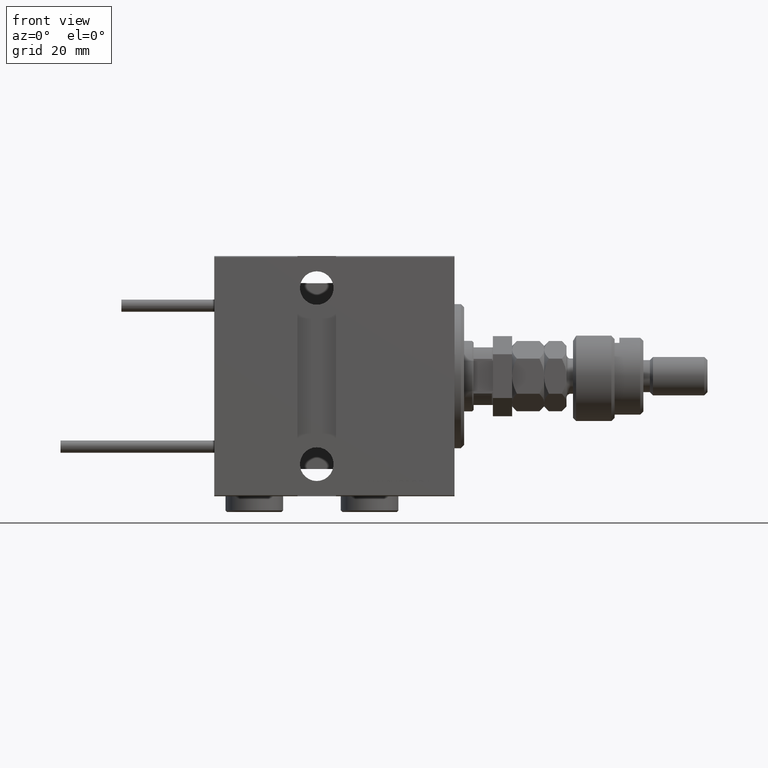
[diagram: clean part render]
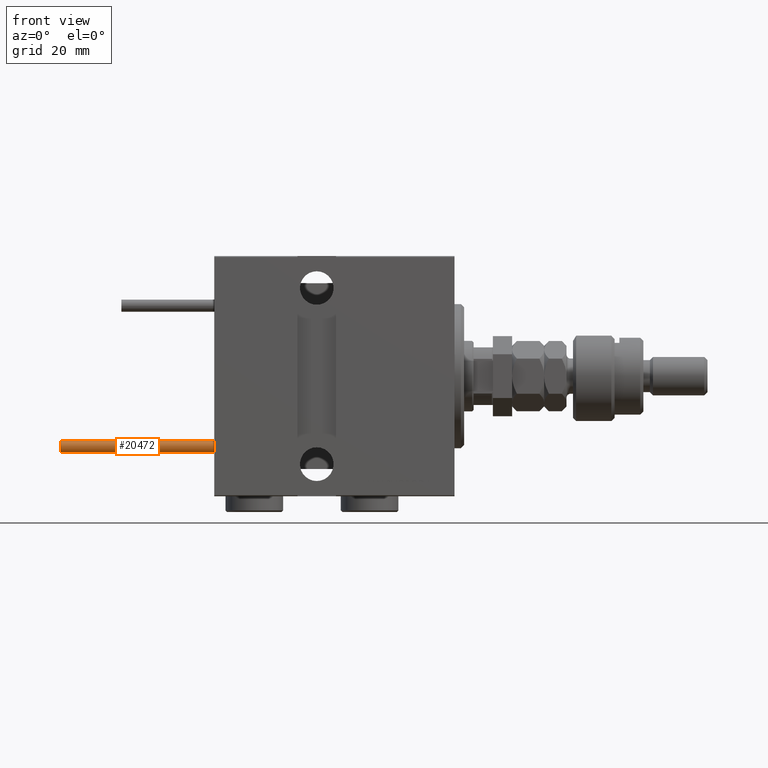
[diagram: same view with one face highlighted and labeled with its STEP entity id]
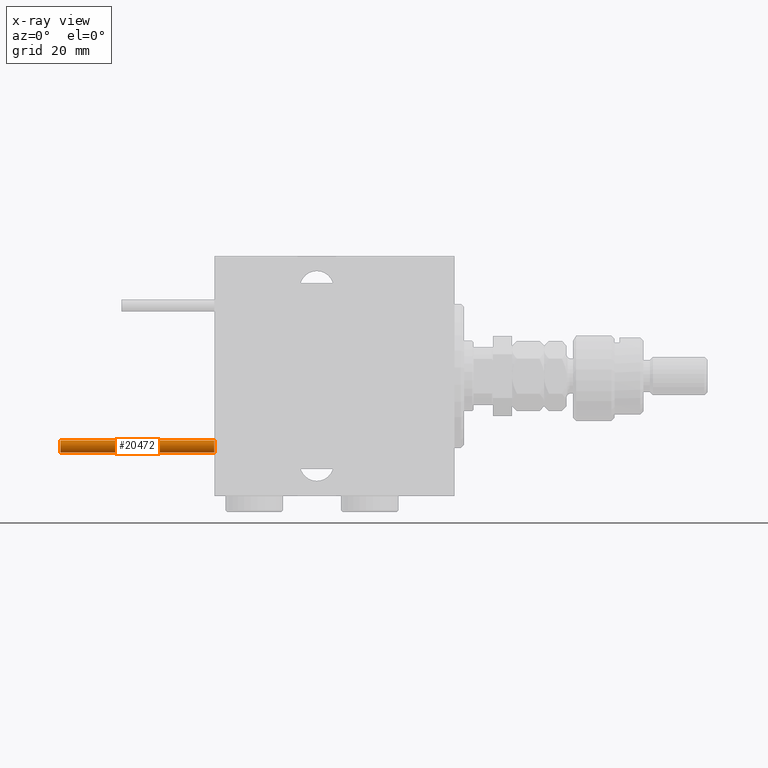
[diagram: x-ray of the same camera — body ghosted, the highlighted face saturated]
A machine part, front view. The second image highlights one B-rep face of the part: STEP entity #20472.
The next image is the same camera in x-ray: the body ghosted, the highlighted face saturated — about 0% of this face is hidden behind the body in this view.
In plain terms, the highlighted cylindrical surface (edge-blend (fillet) strip) has radius 1.9 mm, axis along (1, -0, 0).
Its self-contained STEP definition (entity closure, byte-faithful):
#1754 = DIRECTION ( 'NONE',  ( 1.000000000000000000, 0.000000000000000000, 0.000000000000000000 ) ) ;
#2052 = DIRECTION ( 'NONE',  ( -0.000000000000000000, -0.000000000000000000, -1.000000000000000000 ) ) ;
#4414 = ORIENTED_EDGE ( 'NONE', *, *, #40222, .F. ) ;
#4551 = LINE ( 'NONE', #21419, #42453 ) ;
#6032 = VERTEX_POINT ( 'NONE', #52610 ) ;
#6061 = CIRCLE ( 'NONE', #24323, 1.899999999999999467 ) ;
#6853 = DIRECTION ( 'NONE',  ( 1.000000000000000000, 0.000000000000000000, 0.000000000000000000 ) ) ;
#7172 = ORIENTED_EDGE ( 'NONE', *, *, #35310, .F. ) ;
#7173 = VERTEX_POINT ( 'NONE', #20749 ) ;
#8920 = EDGE_CURVE ( 'NONE', #51244, #31426, #16701, .T. ) ;
#9749 = AXIS2_PLACEMENT_3D ( 'NONE', #19625, #14499, #6853 ) ;
#10993 = ORIENTED_EDGE ( 'NONE', *, *, #8920, .T. ) ;
#14499 = DIRECTION ( 'NONE',  ( 0.000000000000000000, 0.000000000000000000, 1.000000000000000000 ) ) ;
#16701 = CIRCLE ( 'NONE', #9749, 1.899999999999999467 ) ;
#16881 = AXIS2_PLACEMENT_3D ( 'NONE', #29251, #41761, #49111 ) ;
#19625 = CARTESIAN_POINT ( 'NONE',  ( 0.000000000000000000, 0.000000000000000000, 0.000000000000000000 ) ) ;
#19678 = VECTOR ( 'NONE', #2052, 1000.000000000000000 ) ;
#20472 = ADVANCED_FACE ( 'NONE', ( #34336 ), #50911, .T. ) ;
#20749 = CARTESIAN_POINT ( 'NONE',  ( -1.899999999999999467, 0.000000000000000000, 48.00000000000000000 ) ) ;
#21419 = CARTESIAN_POINT ( 'NONE',  ( -1.899999999999999467, 0.000000000000000000, 48.00000000000000000 ) ) ;
#22165 = DIRECTION ( 'NONE',  ( 0.000000000000000000, 0.000000000000000000, 1.000000000000000000 ) ) ;
#24323 = AXIS2_PLACEMENT_3D ( 'NONE', #51239, #22165, #1754 ) ;
#29251 = CARTESIAN_POINT ( 'NONE',  ( 0.000000000000000000, 0.000000000000000000, 48.00000000000000000 ) ) ;
#29334 = EDGE_CURVE ( 'NONE', #7173, #51244, #4551, .T. ) ;
#29554 = CARTESIAN_POINT ( 'NONE',  ( 1.899999999999999467, 2.326828918379970872E-16, 48.00000000000000000 ) ) ;
#31426 = VERTEX_POINT ( 'NONE', #36426 ) ;
#33489 = CARTESIAN_POINT ( 'NONE',  ( -1.899999999999999467, 0.000000000000000000, 0.000000000000000000 ) ) ;
#33612 = LINE ( 'NONE', #29554, #19678 ) ;
#34336 = FACE_OUTER_BOUND ( 'NONE', #43760, .T. ) ;
#35310 = EDGE_CURVE ( 'NONE', #7173, #6032, #6061, .T. ) ;
#36426 = CARTESIAN_POINT ( 'NONE',  ( 1.899999999999999467, 2.326828918379970872E-16, 0.000000000000000000 ) ) ;
#37761 = DIRECTION ( 'NONE',  ( -0.000000000000000000, -0.000000000000000000, -1.000000000000000000 ) ) ;
#40222 = EDGE_CURVE ( 'NONE', #6032, #31426, #33612, .T. ) ;
#41761 = DIRECTION ( 'NONE',  ( -0.000000000000000000, -0.000000000000000000, -1.000000000000000000 ) ) ;
#42453 = VECTOR ( 'NONE', #37761, 1000.000000000000000 ) ;
#43582 = ORIENTED_EDGE ( 'NONE', *, *, #29334, .T. ) ;
#43760 = EDGE_LOOP ( 'NONE', ( #4414, #7172, #43582, #10993 ) ) ;
#49111 = DIRECTION ( 'NONE',  ( -1.000000000000000000, 0.000000000000000000, 0.000000000000000000 ) ) ;
#50911 = CYLINDRICAL_SURFACE ( 'NONE', #16881, 1.899999999999999467 ) ;
#51239 = CARTESIAN_POINT ( 'NONE',  ( 0.000000000000000000, 0.000000000000000000, 48.00000000000000000 ) ) ;
#51244 = VERTEX_POINT ( 'NONE', #33489 ) ;
#52610 = CARTESIAN_POINT ( 'NONE',  ( 1.899999999999999467, 2.326828918379970872E-16, 48.00000000000000000 ) ) ;